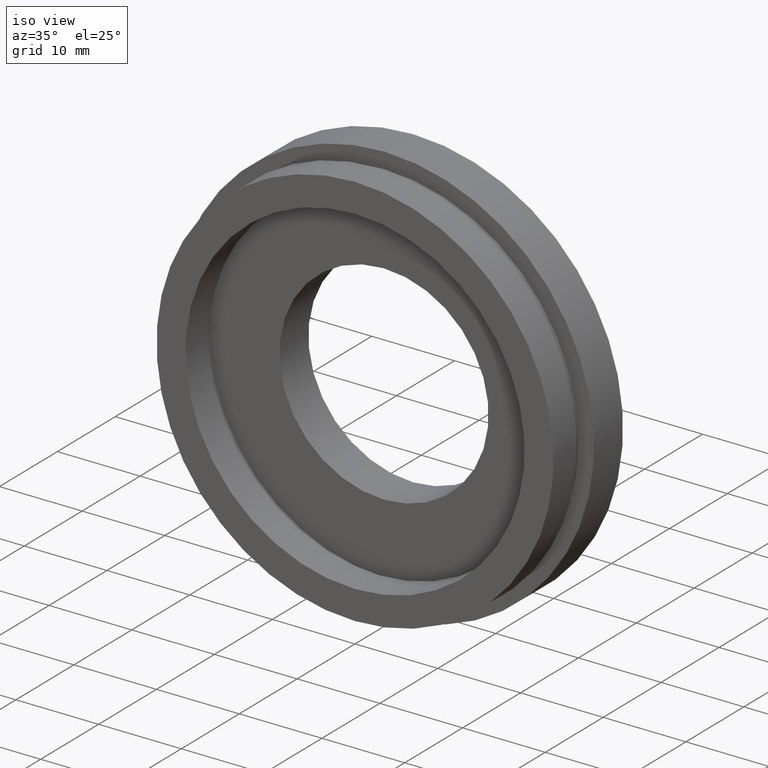
[diagram: clean part render]
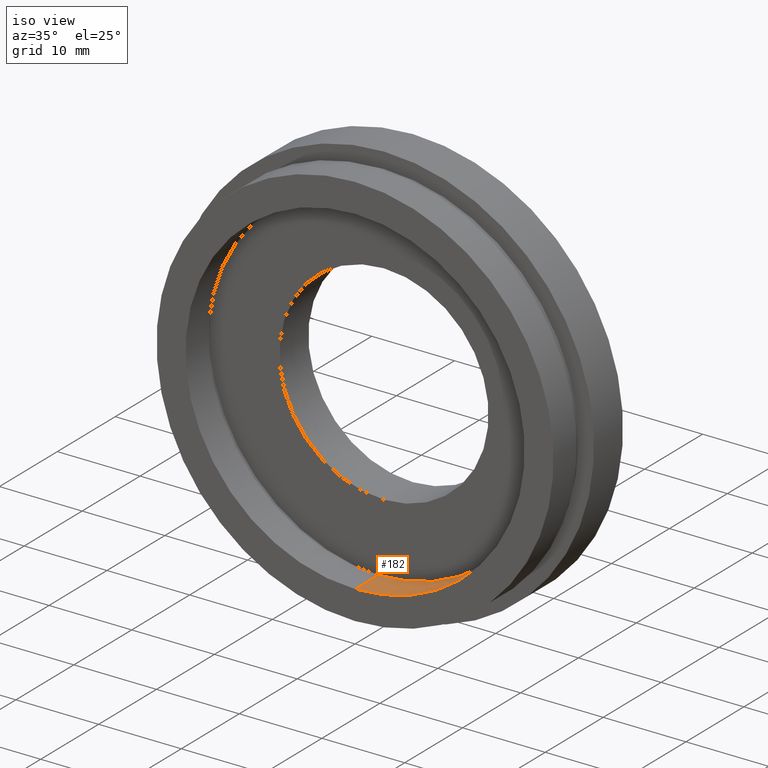
[diagram: same view with one face highlighted and labeled with its STEP entity id]
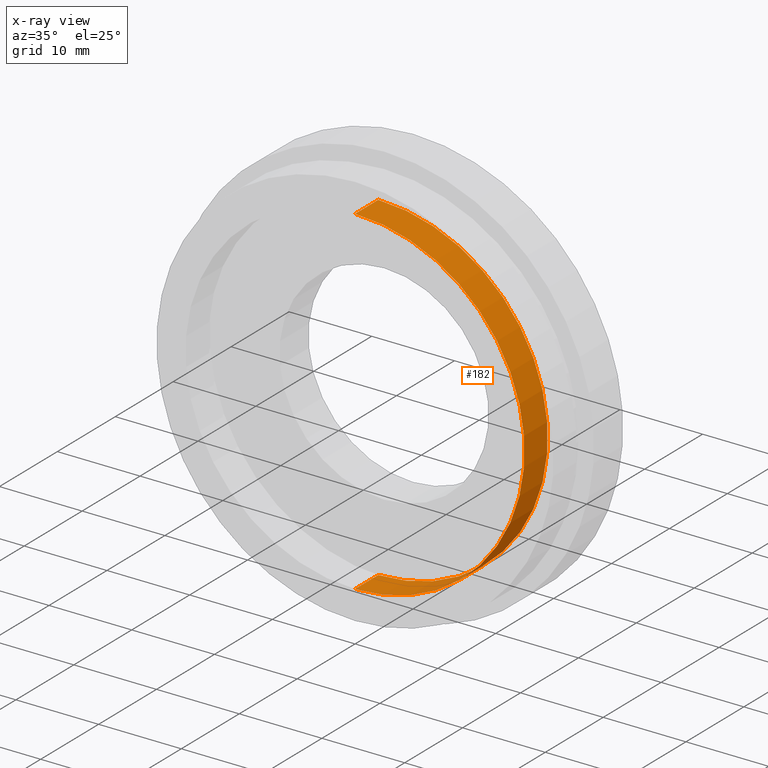
[diagram: x-ray of the same camera — body ghosted, the highlighted face saturated]
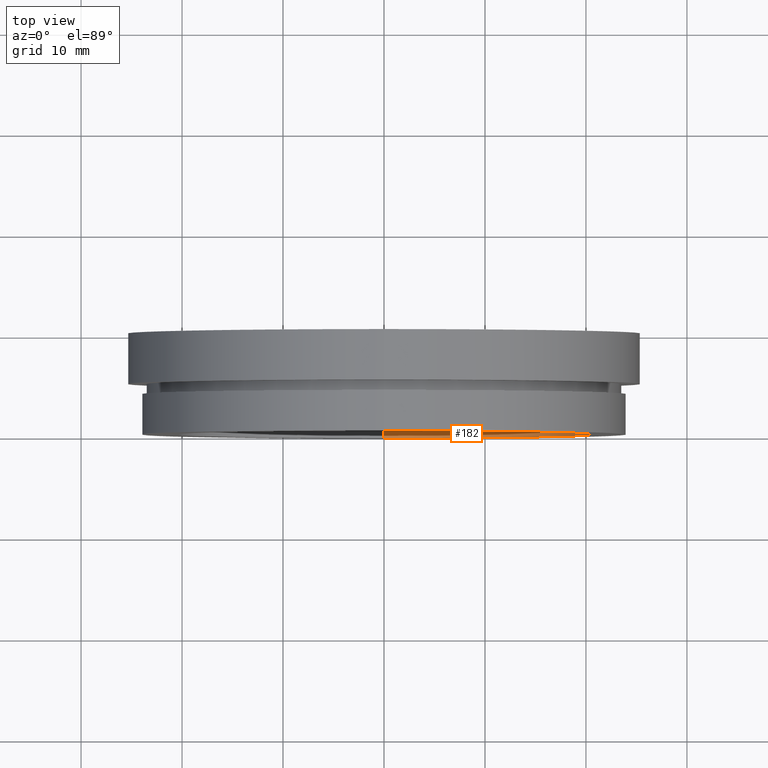
[diagram: same view with one face highlighted and labeled with its STEP entity id]
A machine part, iso view. The second image highlights one B-rep face of the part: STEP entity #182.
The next image is the same camera in x-ray: the body ghosted, the highlighted face saturated — about 0% of this face is hidden behind the body in this view.
A second angle (top view) of the same face is appended — the face is thin or edge-on in the first view.
In plain terms, the highlighted cylindrical surface (partial cylindrical patch) has radius 20.5 mm, axis along (-0, 1, -0).
Its self-contained STEP definition (entity closure, byte-faithful):
#3 = EDGE_CURVE ( 'NONE', #158, #325, #220, .T. ) ;
#5 = CARTESIAN_POINT ( 'NONE',  ( 0.0000000000000000000, 4.000000000000000000, 0.0000000000000000000 ) ) ;
#37 = DIRECTION ( 'NONE',  ( 0.0000000000000000000, 0.0000000000000000000, 1.000000000000000000 ) ) ;
#41 = EDGE_CURVE ( 'NONE', #176, #297, #296, .T. ) ;
#53 = CARTESIAN_POINT ( 'NONE',  ( 2.510525938252074500E-015, 13.74468085106383300, -20.50000000000000000 ) ) ;
#70 = DIRECTION ( 'NONE',  ( -0.0000000000000000000, 1.000000000000000000, -0.0000000000000000000 ) ) ;
#77 = AXIS2_PLACEMENT_3D ( 'NONE', #242, #70, #203 ) ;
#158 = VERTEX_POINT ( 'NONE', #280 ) ;
#172 = ORIENTED_EDGE ( 'NONE', *, *, #536, .T. ) ;
#176 = VERTEX_POINT ( 'NONE', #508 ) ;
#182 = ADVANCED_FACE ( 'NONE', ( #551 ), #476, .F. ) ;
#201 = DIRECTION ( 'NONE',  ( -0.0000000000000000000, 1.000000000000000000, -0.0000000000000000000 ) ) ;
#203 = DIRECTION ( 'NONE',  ( 0.0000000000000000000, 0.0000000000000000000, 1.000000000000000000 ) ) ;
#220 = CIRCLE ( 'NONE', #77, 20.50000000000000000 ) ;
#242 = CARTESIAN_POINT ( 'NONE',  ( 0.0000000000000000000, 0.0000000000000000000, 0.0000000000000000000 ) ) ;
#274 = DIRECTION ( 'NONE',  ( 0.0000000000000000000, 0.0000000000000000000, 1.000000000000000000 ) ) ;
#280 = CARTESIAN_POINT ( 'NONE',  ( 0.0000000000000000000, 0.0000000000000000000, 20.50000000000000000 ) ) ;
#296 = CIRCLE ( 'NONE', #547, 20.50000000000000000 ) ;
#297 = VERTEX_POINT ( 'NONE', #548 ) ;
#325 = VERTEX_POINT ( 'NONE', #502 ) ;
#339 = VECTOR ( 'NONE', #340, 1000.000000000000000 ) ;
#340 = DIRECTION ( 'NONE',  ( -0.0000000000000000000, 1.000000000000000000, -0.0000000000000000000 ) ) ;
#363 = VECTOR ( 'NONE', #531, 1000.000000000000000 ) ;
#410 = EDGE_LOOP ( 'NONE', ( #467, #461, #172, #468 ) ) ;
#441 = CARTESIAN_POINT ( 'NONE',  ( 0.0000000000000000000, 13.74468085106383300, 20.50000000000000000 ) ) ;
#461 = ORIENTED_EDGE ( 'NONE', *, *, #3, .F. ) ;
#467 = ORIENTED_EDGE ( 'NONE', *, *, #560, .F. ) ;
#468 = ORIENTED_EDGE ( 'NONE', *, *, #41, .T. ) ;
#475 = CARTESIAN_POINT ( 'NONE',  ( 0.0000000000000000000, 13.74468085106383300, 0.0000000000000000000 ) ) ;
#476 = CYLINDRICAL_SURFACE ( 'NONE', #568, 20.50000000000000000 ) ;
#492 = DIRECTION ( 'NONE',  ( -0.0000000000000000000, 1.000000000000000000, -0.0000000000000000000 ) ) ;
#502 = CARTESIAN_POINT ( 'NONE',  ( 2.510525938252074500E-015, 0.0000000000000000000, -20.50000000000000000 ) ) ;
#508 = CARTESIAN_POINT ( 'NONE',  ( 0.0000000000000000000, 4.000000000000000000, 20.50000000000000000 ) ) ;
#520 = LINE ( 'NONE', #441, #339 ) ;
#531 = DIRECTION ( 'NONE',  ( -0.0000000000000000000, 1.000000000000000000, -0.0000000000000000000 ) ) ;
#536 = EDGE_CURVE ( 'NONE', #158, #176, #520, .T. ) ;
#547 = AXIS2_PLACEMENT_3D ( 'NONE', #5, #201, #37 ) ;
#548 = CARTESIAN_POINT ( 'NONE',  ( 2.510525938252074500E-015, 4.000000000000000000, -20.50000000000000000 ) ) ;
#551 = FACE_OUTER_BOUND ( 'NONE', #410, .T. ) ;
#560 = EDGE_CURVE ( 'NONE', #325, #297, #605, .T. ) ;
#568 = AXIS2_PLACEMENT_3D ( 'NONE', #475, #492, #274 ) ;
#605 = LINE ( 'NONE', #53, #363 ) ;